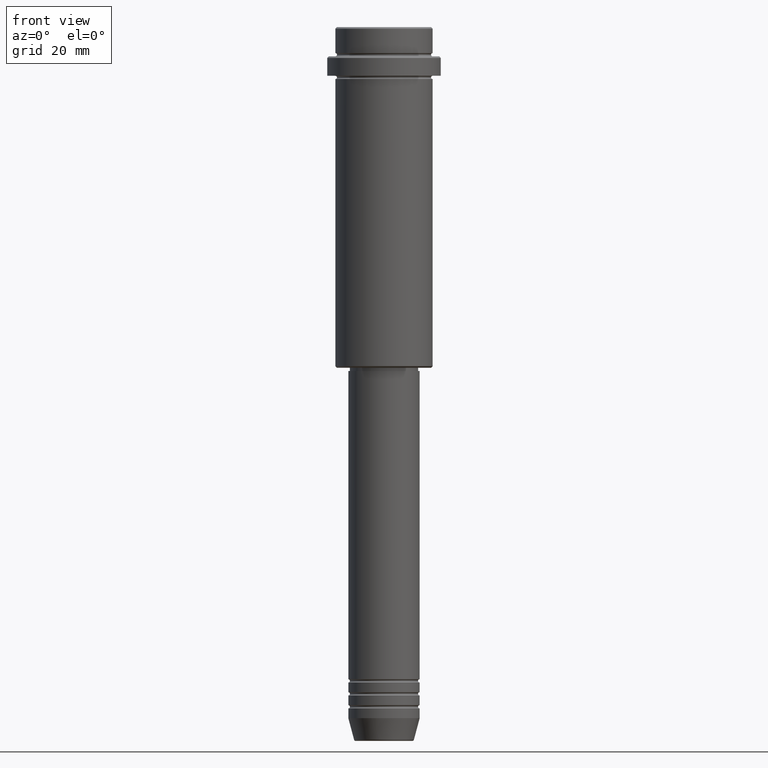
[diagram: clean part render]
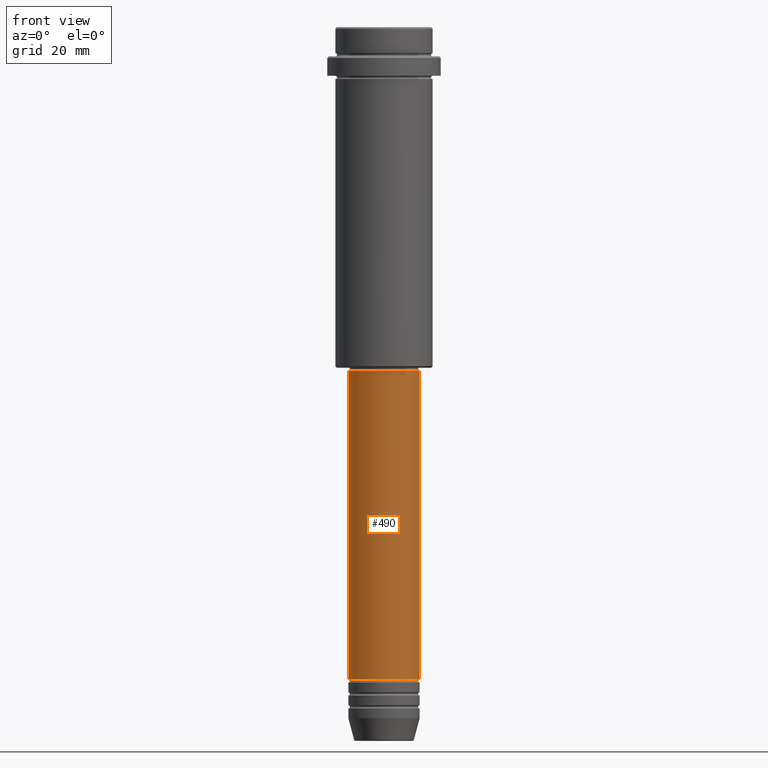
[diagram: same view with one face highlighted and labeled with its STEP entity id]
A machine part, front view. The second image highlights one B-rep face of the part: STEP entity #490.
In plain terms, the highlighted cylindrical surface (edge-blend (fillet) strip) has radius 11 mm, axis along (-0, -0, 1).
Its self-contained STEP definition (entity closure, byte-faithful):
#64 = AXIS2_PLACEMENT_3D ( 'NONE', #887, #880, #1187 ) ;
#91 = DIRECTION ( 'NONE',  ( 1.000000000000000000, 0.000000000000000000, 0.000000000000000000 ) ) ;
#119 = ORIENTED_EDGE ( 'NONE', *, *, #1092, .T. ) ;
#145 = LINE ( 'NONE', #599, #943 ) ;
#158 = LINE ( 'NONE', #239, #946 ) ;
#210 = CIRCLE ( 'NONE', #997, 11.00000000000000000 ) ;
#225 = VERTEX_POINT ( 'NONE', #1348 ) ;
#237 = ORIENTED_EDGE ( 'NONE', *, *, #1375, .F. ) ;
#239 = CARTESIAN_POINT ( 'NONE',  ( -11.00000000000000000, 1.347111479062088405E-15, 0.000000000000000000 ) ) ;
#357 = DIRECTION ( 'NONE',  ( -0.000000000000000000, -0.000000000000000000, 1.000000000000000000 ) ) ;
#421 = CARTESIAN_POINT ( 'NONE',  ( 0.000000000000000000, 0.000000000000000000, -200.9999999999999147 ) ) ;
#431 = VERTEX_POINT ( 'NONE', #647 ) ;
#470 = CYLINDRICAL_SURFACE ( 'NONE', #663, 11.00000000000000000 ) ;
#490 = ADVANCED_FACE ( 'NONE', ( #576 ), #470, .T. ) ;
#538 = CARTESIAN_POINT ( 'NONE',  ( 11.00000000000000000, 0.000000000000000000, -200.9999999999999147 ) ) ;
#576 = FACE_OUTER_BOUND ( 'NONE', #1056, .T. ) ;
#599 = CARTESIAN_POINT ( 'NONE',  ( 11.00000000000000000, 0.000000000000000000, 0.000000000000000000 ) ) ;
#647 = CARTESIAN_POINT ( 'NONE',  ( 10.99999999999999822, 0.000000000000000000, -106.0000000000000142 ) ) ;
#663 = AXIS2_PLACEMENT_3D ( 'NONE', #1333, #357, #677 ) ;
#677 = DIRECTION ( 'NONE',  ( 1.000000000000000000, 0.000000000000000000, 0.000000000000000000 ) ) ;
#691 = CARTESIAN_POINT ( 'NONE',  ( -10.99999999999999822, 1.347111479062088207E-15, -106.0000000000000142 ) ) ;
#797 = CIRCLE ( 'NONE', #64, 10.99999999999999822 ) ;
#799 = DIRECTION ( 'NONE',  ( -0.000000000000000000, -0.000000000000000000, 1.000000000000000000 ) ) ;
#802 = DIRECTION ( 'NONE',  ( -0.000000000000000000, -0.000000000000000000, 1.000000000000000000 ) ) ;
#866 = EDGE_CURVE ( 'NONE', #225, #872, #210, .T. ) ;
#872 = VERTEX_POINT ( 'NONE', #538 ) ;
#880 = DIRECTION ( 'NONE',  ( -0.000000000000000000, -0.000000000000000000, 1.000000000000000000 ) ) ;
#887 = CARTESIAN_POINT ( 'NONE',  ( 0.000000000000000000, 0.000000000000000000, -106.0000000000000142 ) ) ;
#943 = VECTOR ( 'NONE', #802, 1000.000000000000000 ) ;
#946 = VECTOR ( 'NONE', #799, 1000.000000000000000 ) ;
#950 = EDGE_CURVE ( 'NONE', #1071, #431, #797, .T. ) ;
#980 = ORIENTED_EDGE ( 'NONE', *, *, #866, .T. ) ;
#997 = AXIS2_PLACEMENT_3D ( 'NONE', #421, #1045, #91 ) ;
#1045 = DIRECTION ( 'NONE',  ( -0.000000000000000000, -0.000000000000000000, 1.000000000000000000 ) ) ;
#1056 = EDGE_LOOP ( 'NONE', ( #237, #980, #119, #1269 ) ) ;
#1071 = VERTEX_POINT ( 'NONE', #691 ) ;
#1092 = EDGE_CURVE ( 'NONE', #872, #431, #145, .T. ) ;
#1187 = DIRECTION ( 'NONE',  ( 1.000000000000000000, 0.000000000000000000, 0.000000000000000000 ) ) ;
#1269 = ORIENTED_EDGE ( 'NONE', *, *, #950, .F. ) ;
#1333 = CARTESIAN_POINT ( 'NONE',  ( 0.000000000000000000, 0.000000000000000000, 0.000000000000000000 ) ) ;
#1348 = CARTESIAN_POINT ( 'NONE',  ( -11.00000000000000000, 1.347111479062088405E-15, -200.9999999999999147 ) ) ;
#1375 = EDGE_CURVE ( 'NONE', #225, #1071, #158, .T. ) ;